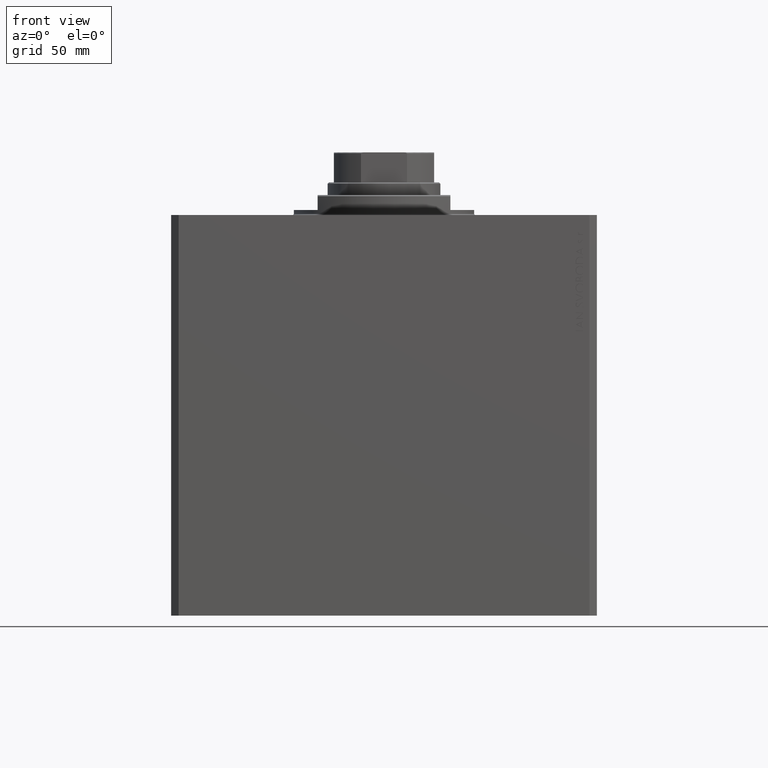
[diagram: clean part render]
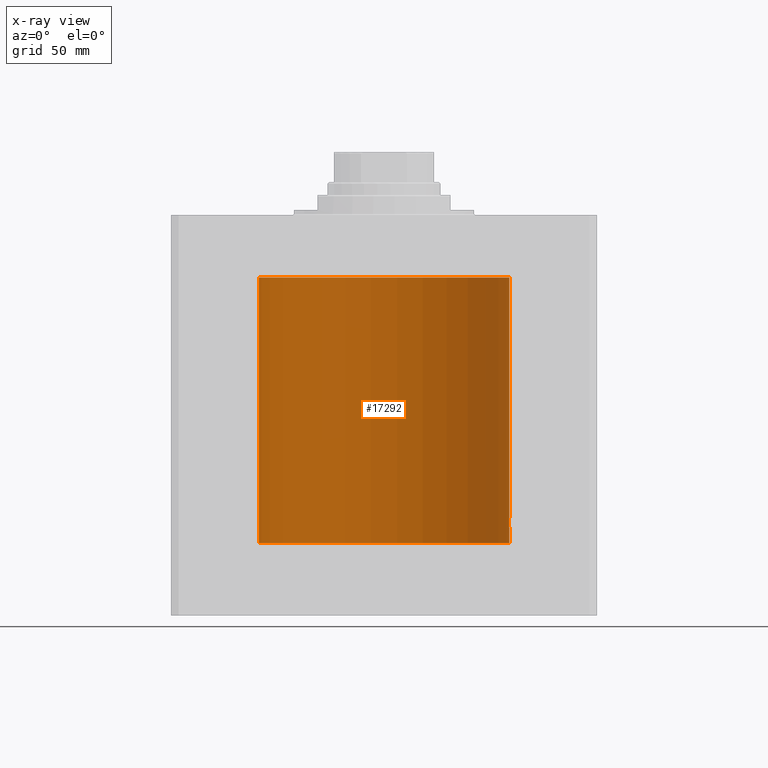
[diagram: x-ray — body ghosted, one internal face saturated and labeled with its STEP entity id]
A machine part, front view, then the same camera in x-ray: the body is ghosted and one INTERNAL B-rep face — a face not visible from any outside direction — is saturated and labeled: STEP entity #17292.
In plain terms, the highlighted cylindrical surface (partial cylindrical patch) has radius 50 mm, axis along (0, 0, 1).
Its self-contained STEP definition (entity closure, byte-faithful):
#169 = CARTESIAN_POINT ( 'NONE',  ( 50.00000000000000000, 0.1321888607815028260, -125.0000000000000853 ) ) ;
#232 = CARTESIAN_POINT ( 'NONE',  ( -50.00000000000000711, 0.1321588334531834663, -34.99999999999998579 ) ) ;
#640 = CARTESIAN_POINT ( 'NONE',  ( 49.95998398718716516, 2.000000000000564881, -122.8695654969272084 ) ) ;
#791 = LINE ( 'NONE', #44468, #44186 ) ;
#868 = CARTESIAN_POINT ( 'NONE',  ( 49.97475955401471026, 1.599209500590069943, -124.2290851407538810 ) ) ;
#1073 = CARTESIAN_POINT ( 'NONE',  ( -50.00000000000000000, 6.123233995736766085E-15, -131.0999999999999943 ) ) ;
#1619 = VERTEX_POINT ( 'NONE', #13467 ) ;
#1715 = B_SPLINE_CURVE_WITH_KNOTS ( 'NONE', 3,
 ( #22163, #169, #7318, #43609, #29296, #14491, #8029, #28830, #21913, #868, #36924, #4451, #36224, #47204 ),
 .UNSPECIFIED., .F., .F.,
 ( 4, 2, 2, 2, 2, 2, 4 ),
 ( 2.950676318800673392E-18, 0.0003909348706788099283, 0.0007818697413576169292, 0.001172804612036423876, 0.001563739482715231039, 0.002345609224072874206, 0.003127478965430518024 ),
 .UNSPECIFIED. ) ;
#2479 = B_SPLINE_CURVE_WITH_KNOTS ( 'NONE', 3,
 ( #33334, #640, #30010, #15206, #29778, #40040, #26194, #43844, #25717, #40744, #22640, #11153, #18335, #36460, #3760, #34280, #38112, #23344 ),
 .UNSPECIFIED., .F., .F.,
 ( 4, 2, 2, 2, 2, 2, 2, 2, 4 ),
 ( 0.003127478965430518024, 0.003518236230679781373, 0.003908993495929044722, 0.004299750761178307637, 0.004690508026427571420, 0.005081265291676834335, 0.005472022556926097250, 0.005862779822175361033, 0.006253537087424623948 ),
 .UNSPECIFIED. ) ;
#2858 = VECTOR ( 'NONE', #30251, 1000.000000000000000 ) ;
#3760 = CARTESIAN_POINT ( 'NONE',  ( 49.99746746122490038, 0.5192910711913449884, -121.0641786156605662 ) ) ;
#3818 = CARTESIAN_POINT ( 'NONE',  ( -49.99947195246410558, 0.2631107820817846776, -38.98691922436691470 ) ) ;
#4052 = CARTESIAN_POINT ( 'NONE',  ( -49.96050770337905789, 1.987038794023258559, -37.26226128698008466 ) ) ;
#4387 = ORIENTED_EDGE ( 'NONE', *, *, #31945, .T. ) ;
#4451 = CARTESIAN_POINT ( 'NONE',  ( 49.96215500645250529, 1.947567242801464982, -123.5243005476701228 ) ) ;
#4511 = CARTESIAN_POINT ( 'NONE',  ( -49.98262832829516356, 1.321205413082626068, -38.50726475708437135 ) ) ;
#4576 = EDGE_CURVE ( 'NONE', #29228, #10394, #20892, .T. ) ;
#4744 = CARTESIAN_POINT ( 'NONE',  ( -49.98523123236354593, 1.219998263164736807, -38.59015112589698759 ) ) ;
#4758 = DIRECTION ( 'NONE',  ( 0.000000000000000000, 0.000000000000000000, 1.000000000000000000 ) ) ;
#5148 = VERTEX_POINT ( 'NONE', #40002 ) ;
#6702 = VERTEX_POINT ( 'NONE', #8998 ) ;
#7318 = CARTESIAN_POINT ( 'NONE',  ( 49.99947616946592888, 0.2621653831979123828, -124.9870235173230384 ) ) ;
#8029 = CARTESIAN_POINT ( 'NONE',  ( 49.99007528730422933, 1.002097354324910317, -124.7357691082803655 ) ) ;
#8047 = CARTESIAN_POINT ( 'NONE',  ( -50.00000000000000000, 6.123233995736766085E-15, -131.0999999999999943 ) ) ;
#8085 = CARTESIAN_POINT ( 'NONE',  ( -49.99947640732126786, 0.2621063239499291098, -35.01297064418641014 ) ) ;
#8319 = CARTESIAN_POINT ( 'NONE',  ( -49.95998213453558634, 2.000046279225707213, -37.12975027192857880 ) ) ;
#8998 = CARTESIAN_POINT ( 'NONE',  ( 49.95998398718716516, 2.000000000000563549, -123.0000000000000000 ) ) ;
#9917 = CIRCLE ( 'NONE', #24416, 50.00000000000000000 ) ;
#10394 = VERTEX_POINT ( 'NONE', #38400 ) ;
#11153 = CARTESIAN_POINT ( 'NONE',  ( 49.99005286890574951, 1.003169031662882960, -121.2648859834236248 ) ) ;
#11220 = CARTESIAN_POINT ( 'NONE',  ( 0.000000000000000000, 0.000000000000000000, -24.99999999999999289 ) ) ;
#11643 = LINE ( 'NONE', #8047, #46546 ) ;
#11681 = CARTESIAN_POINT ( 'NONE',  ( -49.96992887184637055, 1.735355026673580214, -38.00276062309308855 ) ) ;
#11771 = DIRECTION ( 'NONE',  ( -0.000000000000000000, -0.000000000000000000, 1.000000000000000000 ) ) ;
#11951 = FACE_OUTER_BOUND ( 'NONE', #19395, .T. ) ;
#12144 = CARTESIAN_POINT ( 'NONE',  ( -49.99227820941651146, 0.8870121366447422107, -35.20266925059756602 ) ) ;
#12159 = VECTOR ( 'NONE', #25763, 1000.000000000000000 ) ;
#12668 = DIRECTION ( 'NONE',  ( -0.000000000000000000, -0.000000000000000000, 1.000000000000000000 ) ) ;
#13467 = CARTESIAN_POINT ( 'NONE',  ( 50.00000000000000000, 0.000000000000000000, -131.0999999999999943 ) ) ;
#14491 = CARTESIAN_POINT ( 'NONE',  ( 49.99227494580979680, 0.8871990329080483573, -124.7972405769406237 ) ) ;
#15206 = CARTESIAN_POINT ( 'NONE',  ( 49.96251892914505532, 1.935809163618958051, -122.4806366185916033 ) ) ;
#15484 = LINE ( 'NONE', #37451, #12159 ) ;
#15491 = CARTESIAN_POINT ( 'NONE',  ( -50.00000000000000000, -9.003882097956092458E-15, -34.99999999999999289 ) ) ;
#15725 = CARTESIAN_POINT ( 'NONE',  ( -49.99748258676788026, 0.5177602892975206039, -35.06378986968200451 ) ) ;
#15771 = CYLINDRICAL_SURFACE ( 'NONE', #41069, 50.00000000000000000 ) ;
#17292 = ADVANCED_FACE ( 'NONE', ( #11951 ), #15771, .F. ) ;
#18335 = CARTESIAN_POINT ( 'NONE',  ( 49.99229103891970993, 0.8862970221311291530, -121.2023134001857301 ) ) ;
#18855 = CARTESIAN_POINT ( 'NONE',  ( -49.98524905102831184, 1.219303128102697586, -35.40928153240807319 ) ) ;
#19325 = CARTESIAN_POINT ( 'NONE',  ( -49.99004874905787688, 1.003375892571688910, -38.73499659467171341 ) ) ;
#19395 = EDGE_LOOP ( 'NONE', ( #20302, #33639, #4387, #20051, #35831, #21826, #44436, #24656, #25163 ) ) ;
#20051 = ORIENTED_EDGE ( 'NONE', *, *, #40029, .T. ) ;
#20302 = ORIENTED_EDGE ( 'NONE', *, *, #34919, .F. ) ;
#20892 = CIRCLE ( 'NONE', #26965, 50.00000000000000000 ) ;
#21509 = CARTESIAN_POINT ( 'NONE',  ( 50.00000000000000000, 0.000000000000000000, -24.99999999999999289 ) ) ;
#21826 = ORIENTED_EDGE ( 'NONE', *, *, #29317, .T. ) ;
#21913 = CARTESIAN_POINT ( 'NONE',  ( 49.98259270595342230, 1.322475809934058333, -124.5060172839778829 ) ) ;
#21976 = CARTESIAN_POINT ( 'NONE',  ( -49.95998770768563446, 1.999907061972440614, -36.73836523183381786 ) ) ;
#22163 = CARTESIAN_POINT ( 'NONE',  ( 50.00000000000000000, 3.036302095833841431E-15, -125.0000000000000000 ) ) ;
#22542 = EDGE_CURVE ( 'NONE', #23930, #28637, #28086, .T. ) ;
#22640 = CARTESIAN_POINT ( 'NONE',  ( 49.98523696312182096, 1.219762141829697999, -121.4096701367431876 ) ) ;
#22693 = CARTESIAN_POINT ( 'NONE',  ( -49.97734518528593384, 1.507874855161120076, -38.32050907330479106 ) ) ;
#22872 = EDGE_CURVE ( 'NONE', #6702, #42195, #2479, .T. ) ;
#22931 = CARTESIAN_POINT ( 'NONE',  ( -49.96251288907240706, 1.935964606501246799, -37.51879205273049678 ) ) ;
#23344 = CARTESIAN_POINT ( 'NONE',  ( 50.00000000000000000, -6.476745247090812175E-24, -121.0000000000000000 ) ) ;
#23570 = EDGE_CURVE ( 'NONE', #23930, #10394, #29559, .T. ) ;
#23930 = VERTEX_POINT ( 'NONE', #26860 ) ;
#24416 = AXIS2_PLACEMENT_3D ( 'NONE', #41911, #27829, #45727 ) ;
#24656 = ORIENTED_EDGE ( 'NONE', *, *, #23570, .F. ) ;
#25163 = ORIENTED_EDGE ( 'NONE', *, *, #22542, .T. ) ;
#25717 = CARTESIAN_POINT ( 'NONE',  ( 49.97735290927441554, 1.507618726120014019, -121.6792011185220730 ) ) ;
#25763 = DIRECTION ( 'NONE',  ( -0.000000000000000000, -0.000000000000000000, 1.000000000000000000 ) ) ;
#26194 = CARTESIAN_POINT ( 'NONE',  ( 49.96993720661966876, 1.735115303979041013, -121.9968286013222638 ) ) ;
#26713 = CARTESIAN_POINT ( 'NONE',  ( -49.96953708402610062, 1.747948211813102892, -35.99374183287712725 ) ) ;
#26860 = CARTESIAN_POINT ( 'NONE',  ( -50.00000000000000000, -9.003882097956092458E-15, -34.99999999999999289 ) ) ;
#26965 = AXIS2_PLACEMENT_3D ( 'NONE', #11220, #4758, #30073 ) ;
#27829 = DIRECTION ( 'NONE',  ( 0.000000000000000000, 0.000000000000000000, 1.000000000000000000 ) ) ;
#28086 = B_SPLINE_CURVE_WITH_KNOTS ( 'NONE', 3,
 ( #15491, #232, #8085, #15725, #44602, #12144, #29359, #18855, #44376, #37457, #26713, #40565, #21976, #8319, #4052, #22931, #29594, #33385, #11681, #37215, #22693, #4511, #4744, #19325, #30287, #36512, #33854, #3818, #32932, #43897 ),
 .UNSPECIFIED., .F., .F.,
 ( 4, 2, 2, 2, 2, 2, 2, 2, 2, 2, 2, 2, 2, 2, 4 ),
 ( 1.951448278188101682E-19, 0.0003908460679639682526, 0.0007816921359279362883, 0.001172538203891904324, 0.001563384271855872360, 0.002345076407783809082, 0.003126768543711746021, 0.003517614611675714056, 0.003908460679639682092, 0.004299306747603650128, 0.004690152815567618164, 0.005080998883531586199, 0.005471844951495554235, 0.005862691019459522271, 0.006253537087423490307 ),
 .UNSPECIFIED. ) ;
#28637 = VERTEX_POINT ( 'NONE', #35604 ) ;
#28830 = CARTESIAN_POINT ( 'NONE',  ( 49.98524326844814425, 1.219541607305973940, -124.5905382022621524 ) ) ;
#29228 = VERTEX_POINT ( 'NONE', #21509 ) ;
#29296 = CARTESIAN_POINT ( 'NONE',  ( 49.99598718814008436, 0.6449352407546075083, -124.8976971177264659 ) ) ;
#29317 = EDGE_CURVE ( 'NONE', #42195, #29228, #15484, .T. ) ;
#29359 = CARTESIAN_POINT ( 'NONE',  ( -49.99007938266582585, 1.001891274688315958, -35.26411427938287346 ) ) ;
#29559 = LINE ( 'NONE', #44102, #2858 ) ;
#29594 = CARTESIAN_POINT ( 'NONE',  ( -49.96398106625520086, 1.898185627324846303, -37.64347622409935212 ) ) ;
#29778 = CARTESIAN_POINT ( 'NONE',  ( 49.96398801900035380, 1.898003203340656198, -122.3559911791024462 ) ) ;
#30010 = CARTESIAN_POINT ( 'NONE',  ( 49.96051123778291725, 1.986950357331387140, -122.7370861026879680 ) ) ;
#30073 = DIRECTION ( 'NONE',  ( 1.000000000000000000, 0.000000000000000000, 0.000000000000000000 ) ) ;
#30251 = DIRECTION ( 'NONE',  ( -0.000000000000000000, -0.000000000000000000, 1.000000000000000000 ) ) ;
#30287 = CARTESIAN_POINT ( 'NONE',  ( -49.99228773711749341, 0.8864865707480856782, -38.79759541170199100 ) ) ;
#31945 = EDGE_CURVE ( 'NONE', #1619, #5148, #791, .T. ) ;
#32136 = CARTESIAN_POINT ( 'NONE',  ( 50.00000000000000000, -6.476745247090812175E-24, -121.0000000000000000 ) ) ;
#32429 = VERTEX_POINT ( 'NONE', #1073 ) ;
#32932 = CARTESIAN_POINT ( 'NONE',  ( -50.00000000000001421, 0.1305374531515847703, -38.99999999999999289 ) ) ;
#33334 = CARTESIAN_POINT ( 'NONE',  ( 49.95998398718716516, 2.000000000000563549, -123.0000000000000000 ) ) ;
#33385 = CARTESIAN_POINT ( 'NONE',  ( -49.96768660357033554, 1.798001154690308967, -37.88564223843271606 ) ) ;
#33639 = ORIENTED_EDGE ( 'NONE', *, *, #33801, .F. ) ;
#33801 = EDGE_CURVE ( 'NONE', #1619, #32429, #9917, .T. ) ;
#33854 = CARTESIAN_POINT ( 'NONE',  ( -49.99746633848589283, 0.5194059499681270564, -38.93579253716512767 ) ) ;
#34280 = CARTESIAN_POINT ( 'NONE',  ( 49.99947219664575471, 0.2630509640965526530, -121.0130747777099032 ) ) ;
#34919 = EDGE_CURVE ( 'NONE', #32429, #28637, #11643, .T. ) ;
#35604 = CARTESIAN_POINT ( 'NONE',  ( -50.00000000000000000, 6.123233989258355553E-15, -38.99999999999999289 ) ) ;
#35831 = ORIENTED_EDGE ( 'NONE', *, *, #22872, .T. ) ;
#36224 = CARTESIAN_POINT ( 'NONE',  ( 49.95998398718717937, 2.000000000000561773, -123.2609875752831101 ) ) ;
#36460 = CARTESIAN_POINT ( 'NONE',  ( 49.99599990398858296, 0.6439560014968555013, -121.1019693915201998 ) ) ;
#36512 = CARTESIAN_POINT ( 'NONE',  ( -49.99599814809604226, 0.6440968921210813436, -38.89798495722402549 ) ) ;
#36924 = CARTESIAN_POINT ( 'NONE',  ( 49.96952841668769452, 1.748193601366643035, -124.0058470866194966 ) ) ;
#37215 = CARTESIAN_POINT ( 'NONE',  ( -49.97474787754178749, 1.590541763713786860, -38.21949285922860184 ) ) ;
#37451 = CARTESIAN_POINT ( 'NONE',  ( 50.00000000000000000, 0.000000000000000000, -131.0999999999999943 ) ) ;
#37457 = CARTESIAN_POINT ( 'NONE',  ( -49.97476780406313424, 1.598950834465297177, -35.77059039179120958 ) ) ;
#38112 = CARTESIAN_POINT ( 'NONE',  ( 50.00000000000000000, 0.1305077942112368161, -121.0000000000000000 ) ) ;
#38400 = CARTESIAN_POINT ( 'NONE',  ( -50.00000000000000000, 6.123233995736766085E-15, -24.99999999999999289 ) ) ;
#40002 = CARTESIAN_POINT ( 'NONE',  ( 50.00000000000000000, 3.036302095833841431E-15, -125.0000000000000000 ) ) ;
#40029 = EDGE_CURVE ( 'NONE', #5148, #6702, #1715, .T. ) ;
#40040 = CARTESIAN_POINT ( 'NONE',  ( 49.96769480970100119, 1.797773714148178881, -122.1139000090266649 ) ) ;
#40565 = CARTESIAN_POINT ( 'NONE',  ( -49.96216141728076821, 1.947404903100933504, -36.47512611661414184 ) ) ;
#40744 = CARTESIAN_POINT ( 'NONE',  ( 49.98263500888552358, 1.320952538904951457, -121.4925159043553435 ) ) ;
#41069 = AXIS2_PLACEMENT_3D ( 'NONE', #45123, #12668, #41780 ) ;
#41226 = DIRECTION ( 'NONE',  ( -0.000000000000000000, -0.000000000000000000, 1.000000000000000000 ) ) ;
#41780 = DIRECTION ( 'NONE',  ( 1.000000000000000000, 0.000000000000000000, 0.000000000000000000 ) ) ;
#41911 = CARTESIAN_POINT ( 'NONE',  ( 0.000000000000000000, 0.000000000000000000, -131.0999999999999943 ) ) ;
#42195 = VERTEX_POINT ( 'NONE', #32136 ) ;
#43609 = CARTESIAN_POINT ( 'NONE',  ( 49.99748146545036320, 0.5178754880116751558, -124.9361813255629841 ) ) ;
#43844 = CARTESIAN_POINT ( 'NONE',  ( 49.97475596784978080, 1.590287868744626465, -121.7801793296755051 ) ) ;
#43897 = CARTESIAN_POINT ( 'NONE',  ( -50.00000000000000000, 6.123233989258355553E-15, -38.99999999999999289 ) ) ;
#44102 = CARTESIAN_POINT ( 'NONE',  ( -50.00000000000000000, 6.123233995736766085E-15, -131.0999999999999943 ) ) ;
#44186 = VECTOR ( 'NONE', #11771, 1000.000000000000000 ) ;
#44376 = CARTESIAN_POINT ( 'NONE',  ( -49.98259925701036366, 1.322227939264704055, -35.49376754264949341 ) ) ;
#44436 = ORIENTED_EDGE ( 'NONE', *, *, #4576, .T. ) ;
#44468 = CARTESIAN_POINT ( 'NONE',  ( 50.00000000000000000, 0.000000000000000000, -131.0999999999999943 ) ) ;
#44602 = CARTESIAN_POINT ( 'NONE',  ( -49.99598898362840771, 0.6447919409892277631, -35.10225615370830354 ) ) ;
#45123 = CARTESIAN_POINT ( 'NONE',  ( 0.000000000000000000, 0.000000000000000000, -131.0999999999999943 ) ) ;
#45727 = DIRECTION ( 'NONE',  ( 1.000000000000000000, 0.000000000000000000, 0.000000000000000000 ) ) ;
#46546 = VECTOR ( 'NONE', #41226, 1000.000000000000000 ) ;
#47204 = CARTESIAN_POINT ( 'NONE',  ( 49.95998398718716516, 2.000000000000563549, -123.0000000000000000 ) ) ;